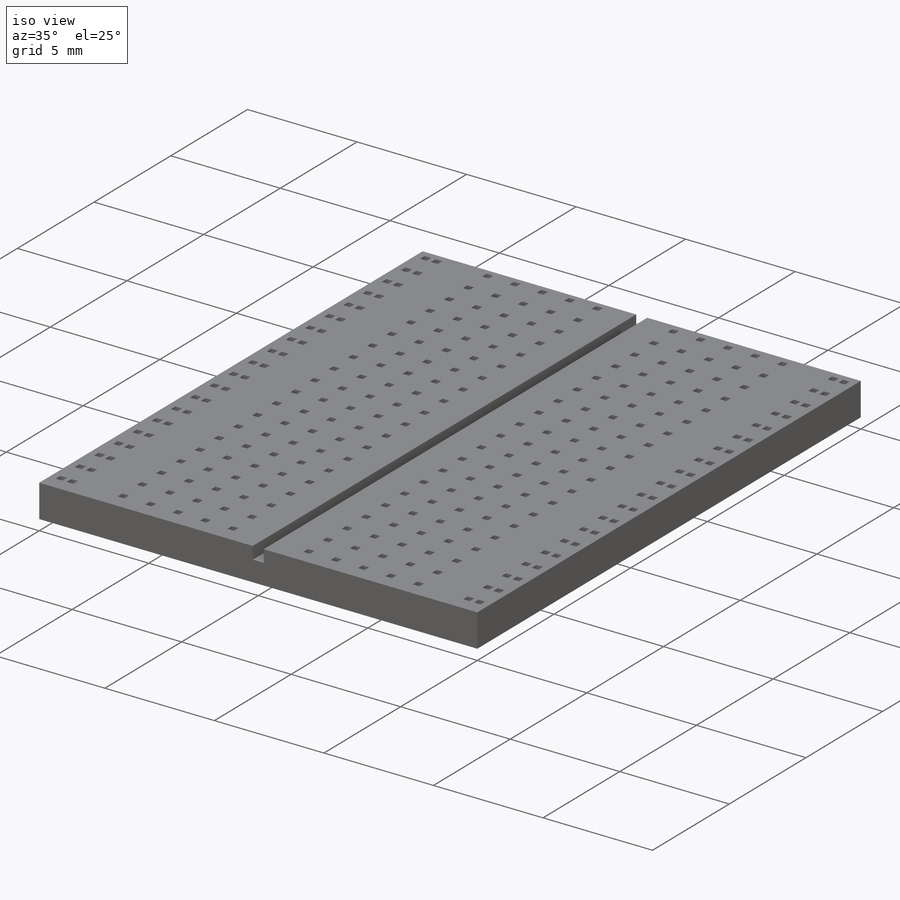
[diagram: iso view]
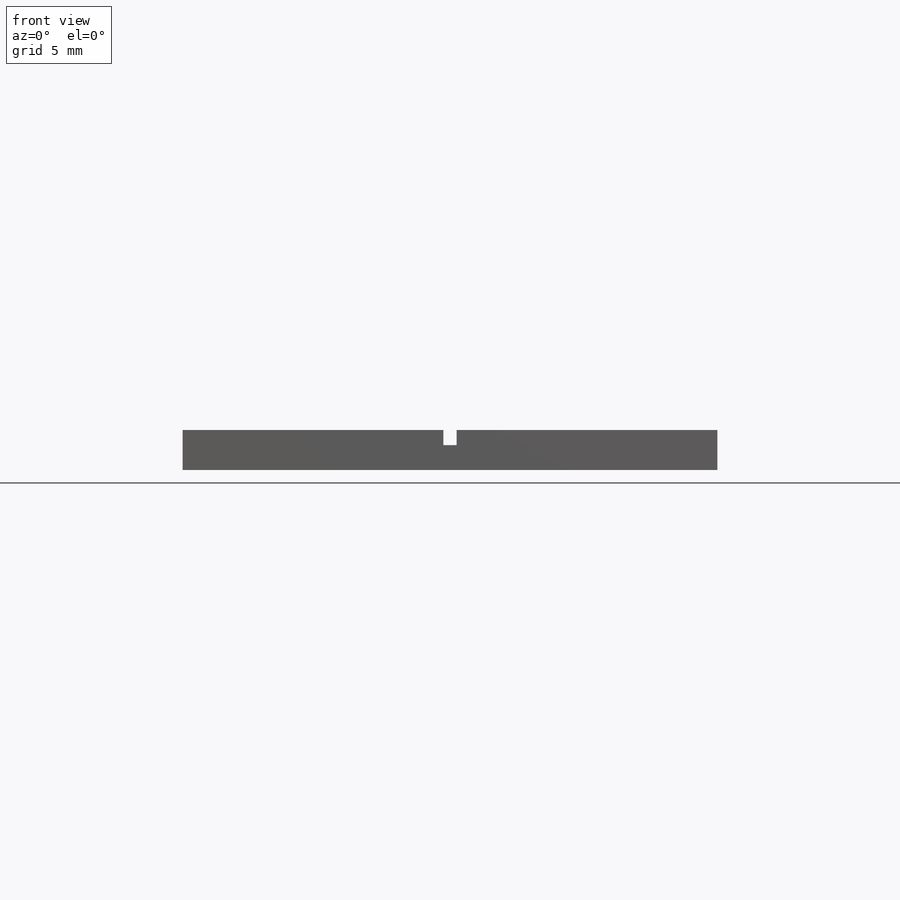
[diagram: front view]
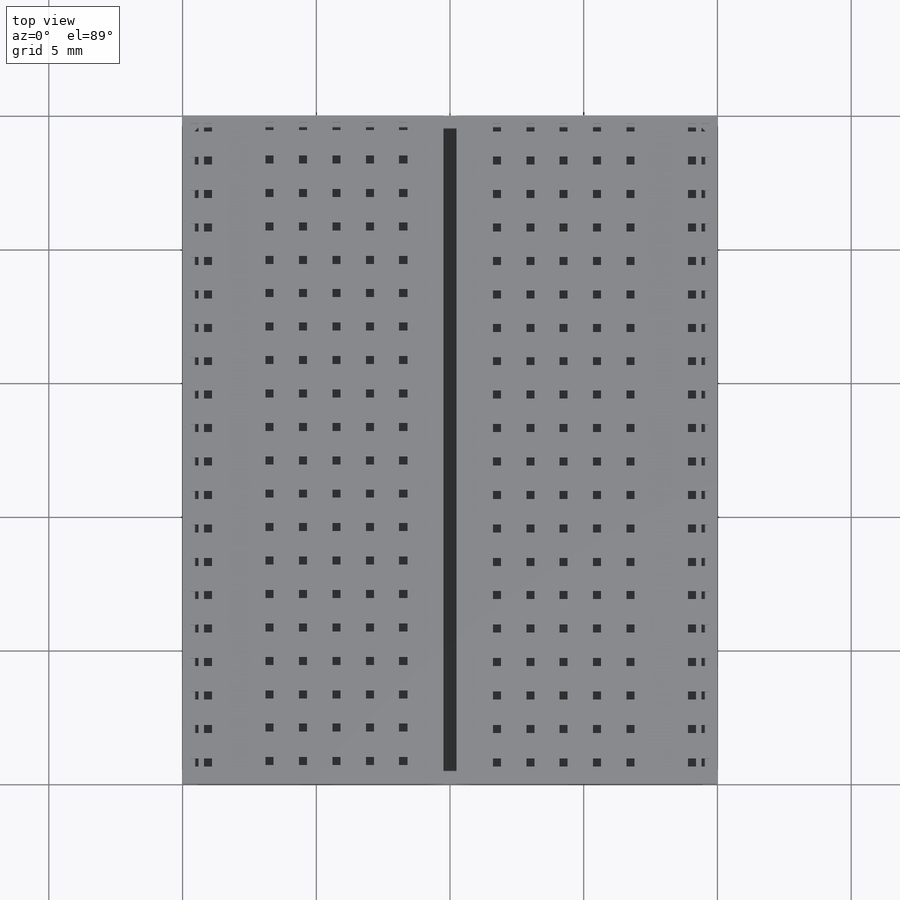
[diagram: top view]
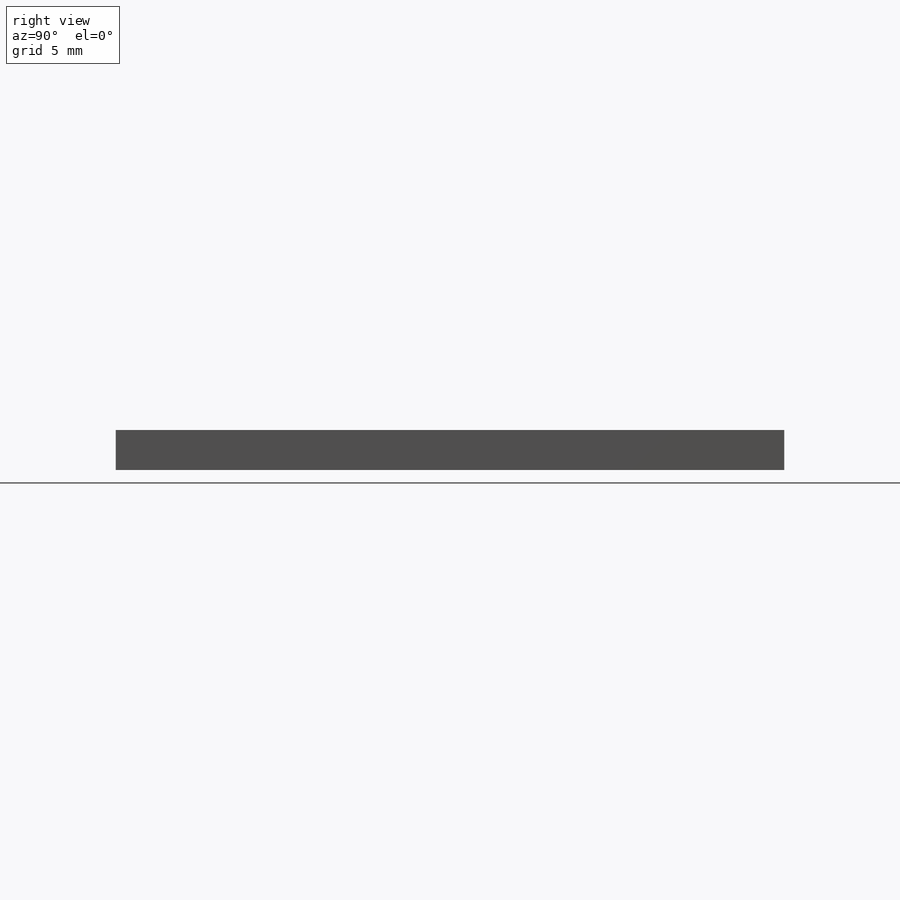
[diagram: right view]
SOLIDWORKS PART (.sldprt)
format: sldprt  version: not decoded by parser v0  size: 950,784 bytes
history: native  units: mm
features: sketch x6, cut_extrude x4, pattern_linear x4, material x1, extrude x1 (+13 scaffold rows collapsed)
feature tree (29):
  scaffold x13  (default folders/planes/origin — collapsed)
  material  "Material <not specified>"
  sketch  "Sketch1"  dims[D1=20.0mm D2=1.5mm D3=1.5mm D4=0.5mm D5=9.75mm]
  extrude  "Boss-Extrude1"  Depth=25mm
  sketch  "Sketch5"  dims[D1=0.3mm D2=0.3mm D3=0.3mm D4=0.3mm]
  cut_extrude  "Cut-Extrude2"  Depth=0.5mm
  pattern_linear  "LPattern5"  Count1=2 Count2=20 Spacing1=0.5mm Spacing2=1.25mm
  sketch  "Sketch6"
  sketch  "Sketch7"  dims[D1=0.3mm D2=0.3mm D3=2.0mm]
  cut_extrude  "Cut-Extrude3"  Depth=0.5mm
  pattern_linear  "LPattern6"  Count1=5 Count2=20 Spacing1=1.25mm Spacing2=1.25mm
  sketch  "Sketch9"  dims[D1=0.3mm D2=0.3mm D3=0.3mm D4=0.3mm]
  cut_extrude  "Cut-Extrude4"  Depth=0.5mm
  pattern_linear  "LPattern7"  Count1=20 Count2=2 Spacing1=1.25mm Spacing2=0.5mm
  sketch  "Sketch10"  dims[D1=0.3mm D2=2.0mm D3=0.3mm]
  cut_extrude  "Cut-Extrude5"  Depth=0.5mm
  pattern_linear  "LPattern8"  Count1=5 Count2=20 Spacing1=1.25mm Spacing2=1.25mm
decode coverage: 14 of 15 modeling features carry decoded parameters
note: suppression state not decoded; provenance and decode notes live in map.json
